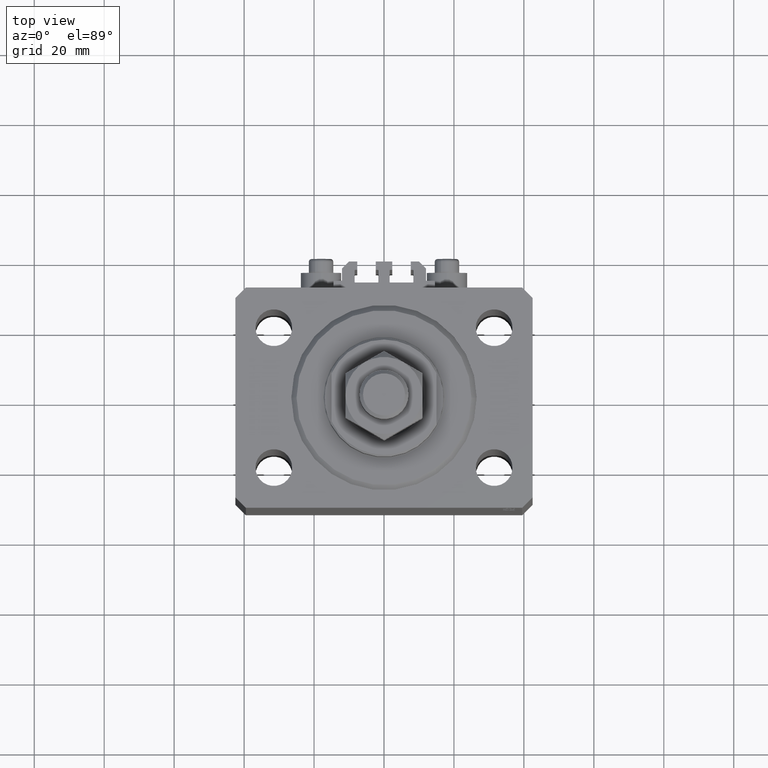
[diagram: clean part render]
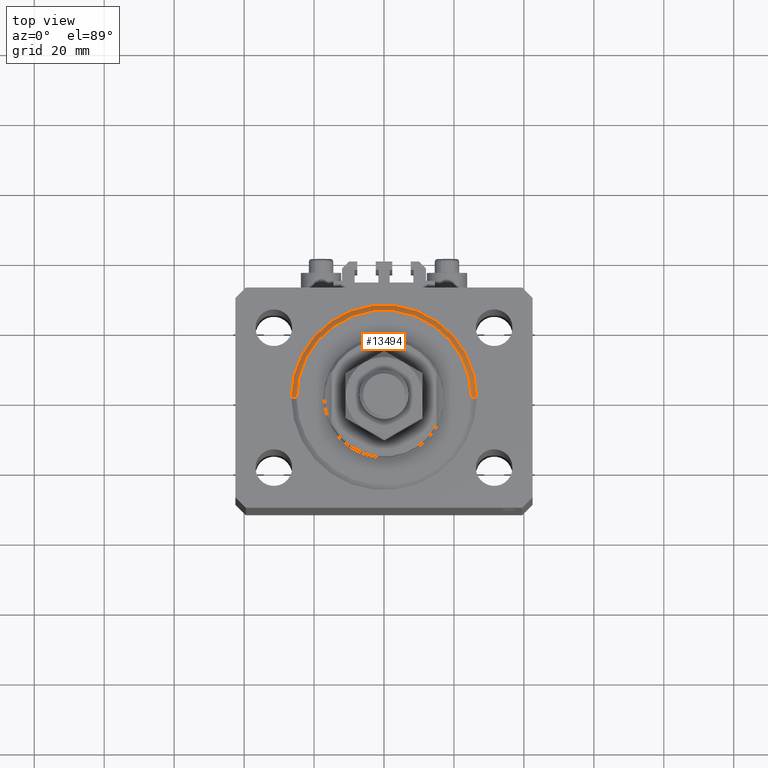
[diagram: same view with one face highlighted and labeled with its STEP entity id]
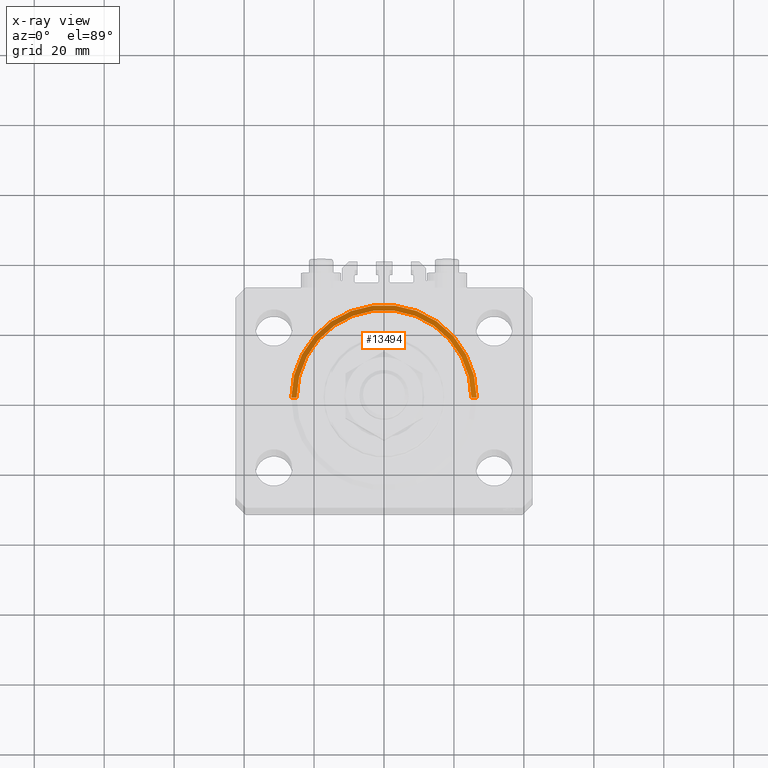
[diagram: x-ray of the same camera — body ghosted, the highlighted face saturated]
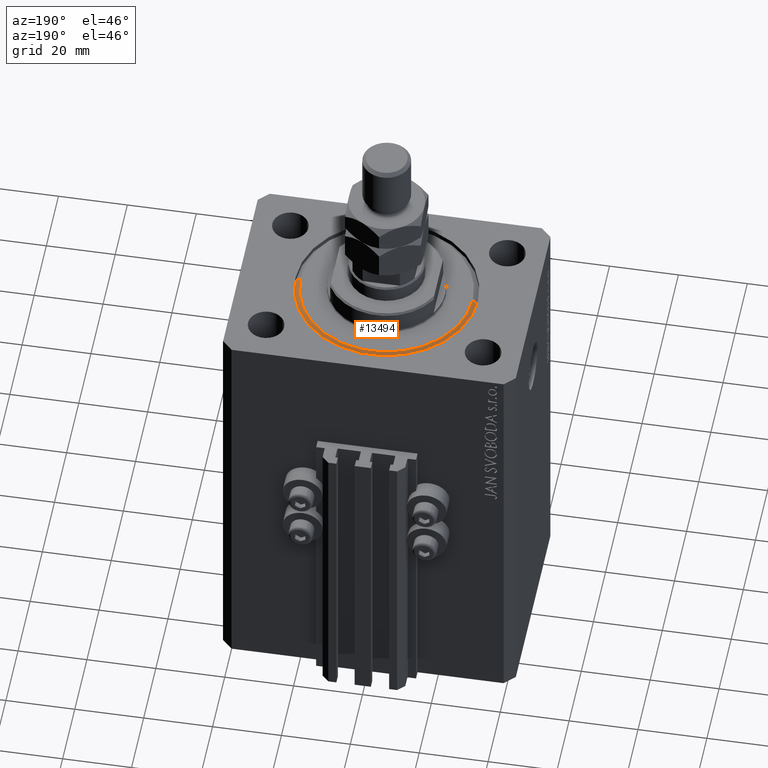
[diagram: same view with one face highlighted and labeled with its STEP entity id]
A machine part, top view. The second image highlights one B-rep face of the part: STEP entity #13494.
The next image is the same camera in x-ray: the body ghosted, the highlighted face saturated — about 0% of this face is hidden behind the body in this view.
A second angle (auxiliary view) of the same face is appended — the face is thin or edge-on in the first view.
In plain terms, the highlighted conical surface has half-angle 45 deg.
Its self-contained STEP definition (entity closure, byte-faithful):
#328 = CARTESIAN_POINT ( 'NONE',  ( 24.99999999999998224, 0.000000000000000000, 0.000000000000000000 ) ) ;
#487 = DIRECTION ( 'NONE',  ( -0.7071067811865483499, 8.659560562354942719E-17, 0.7071067811865466846 ) ) ;
#795 = VERTEX_POINT ( 'NONE', #16735 ) ;
#889 = VECTOR ( 'NONE', #3952, 1000.000000000000000 ) ;
#1321 = AXIS2_PLACEMENT_3D ( 'NONE', #25882, #15253, #44914 ) ;
#2513 = DIRECTION ( 'NONE',  ( -0.000000000000000000, -0.000000000000000000, -1.000000000000000000 ) ) ;
#3661 = DIRECTION ( 'NONE',  ( -0.000000000000000000, -0.000000000000000000, 1.000000000000000000 ) ) ;
#3952 = DIRECTION ( 'NONE',  ( 0.7071067811865483499, 0.000000000000000000, 0.7071067811865466846 ) ) ;
#5042 = CARTESIAN_POINT ( 'NONE',  ( -26.50000000000000355, 0.000000000000000000, 1.500000000000018652 ) ) ;
#8272 = EDGE_CURVE ( 'NONE', #36559, #18168, #36800, .T. ) ;
#8378 = CARTESIAN_POINT ( 'NONE',  ( 0.000000000000000000, 0.000000000000000000, 1.500000000000018652 ) ) ;
#9460 = EDGE_LOOP ( 'NONE', ( #46258, #28246, #41729, #36985 ) ) ;
#11554 = AXIS2_PLACEMENT_3D ( 'NONE', #36398, #2513, #42760 ) ;
#11624 = CONICAL_SURFACE ( 'NONE', #1321, 26.50000000000000355, 0.7853981633974495002 ) ;
#13494 = ADVANCED_FACE ( 'NONE', ( #23157 ), #11624, .T. ) ;
#15253 = DIRECTION ( 'NONE',  ( -0.000000000000000000, -0.000000000000000000, 1.000000000000000000 ) ) ;
#16735 = CARTESIAN_POINT ( 'NONE',  ( 26.50000000000000355, 3.245314017740486554E-15, 1.500000000000018652 ) ) ;
#18168 = VERTEX_POINT ( 'NONE', #328 ) ;
#20018 = EDGE_CURVE ( 'NONE', #795, #40228, #32134, .T. ) ;
#20205 = LINE ( 'NONE', #41781, #889 ) ;
#22705 = DIRECTION ( 'NONE',  ( 1.000000000000000000, 0.000000000000000000, 0.000000000000000000 ) ) ;
#23157 = FACE_OUTER_BOUND ( 'NONE', #9460, .T. ) ;
#25882 = CARTESIAN_POINT ( 'NONE',  ( 0.000000000000000000, 0.000000000000000000, 1.500000000000018652 ) ) ;
#26705 = LINE ( 'NONE', #31638, #42840 ) ;
#28246 = ORIENTED_EDGE ( 'NONE', *, *, #38518, .T. ) ;
#31364 = EDGE_CURVE ( 'NONE', #18168, #795, #20205, .T. ) ;
#31638 = CARTESIAN_POINT ( 'NONE',  ( -26.50000000000000355, 3.245314017740486554E-15, 1.500000000000018652 ) ) ;
#32134 = CIRCLE ( 'NONE', #37634, 26.50000000000000355 ) ;
#36398 = CARTESIAN_POINT ( 'NONE',  ( 0.000000000000000000, 0.000000000000000000, 0.000000000000000000 ) ) ;
#36559 = VERTEX_POINT ( 'NONE', #40245 ) ;
#36800 = CIRCLE ( 'NONE', #11554, 24.99999999999998224 ) ;
#36985 = ORIENTED_EDGE ( 'NONE', *, *, #31364, .F. ) ;
#37634 = AXIS2_PLACEMENT_3D ( 'NONE', #8378, #3661, #22705 ) ;
#38518 = EDGE_CURVE ( 'NONE', #36559, #40228, #26705, .T. ) ;
#40228 = VERTEX_POINT ( 'NONE', #5042 ) ;
#40245 = CARTESIAN_POINT ( 'NONE',  ( -24.99999999999998224, 3.153465507804433615E-15, 0.000000000000000000 ) ) ;
#41729 = ORIENTED_EDGE ( 'NONE', *, *, #20018, .F. ) ;
#41781 = CARTESIAN_POINT ( 'NONE',  ( 26.50000000000000355, 0.000000000000000000, 1.500000000000018652 ) ) ;
#42760 = DIRECTION ( 'NONE',  ( 1.000000000000000000, 0.000000000000000000, 0.000000000000000000 ) ) ;
#42840 = VECTOR ( 'NONE', #487, 1000.000000000000000 ) ;
#44914 = DIRECTION ( 'NONE',  ( 1.000000000000000000, 0.000000000000000000, 0.000000000000000000 ) ) ;
#46258 = ORIENTED_EDGE ( 'NONE', *, *, #8272, .F. ) ;